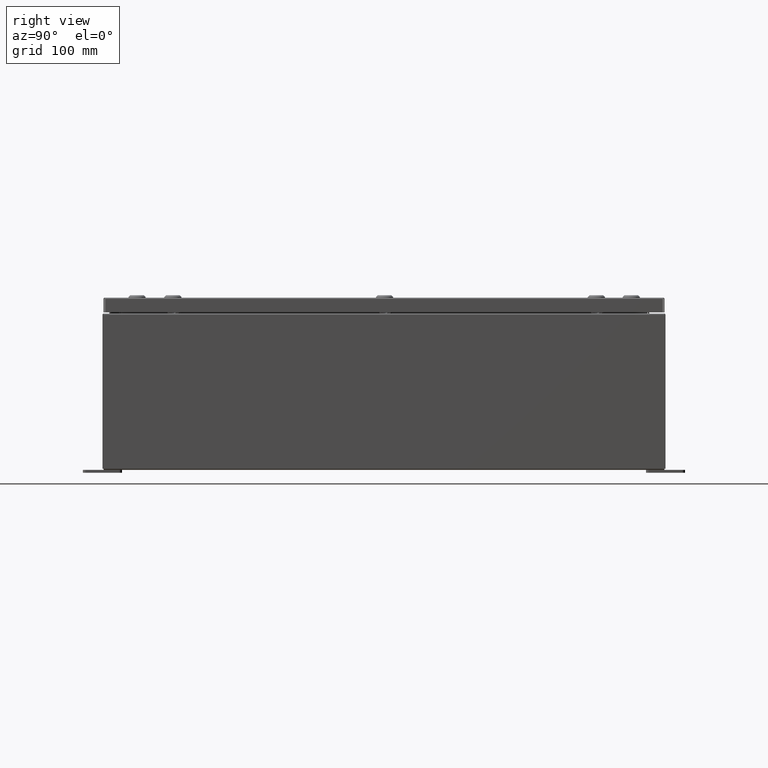
[diagram: clean part render]
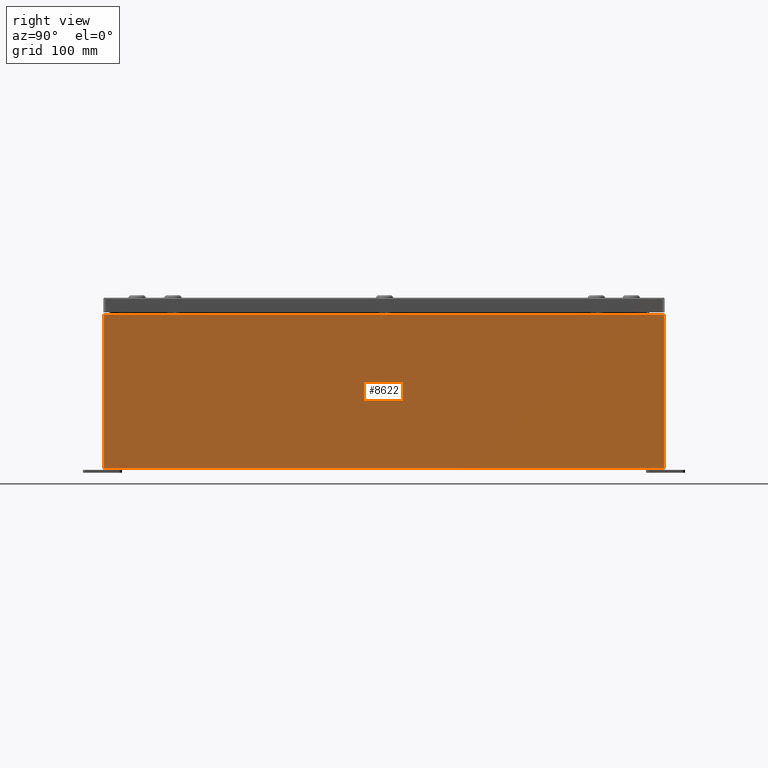
[diagram: same view with one face highlighted and labeled with its STEP entity id]
A machine part, right view. The second image highlights one B-rep face of the part: STEP entity #8622.
In plain terms, the highlighted planar face has unit normal (-1, 0, 0).
Its self-contained STEP definition (entity closure, byte-faithful):
#3407 = VERTEX_POINT ( 'NONE', #7361 ) ;
#5486 = VECTOR ( 'NONE', #62251, 39.37007874015748100 ) ;
#6189 = VERTEX_POINT ( 'NONE', #40984 ) ;
#6384 = DIRECTION ( 'NONE',  ( -0.0000000000000000000, -1.000000000000000000, -0.0000000000000000000 ) ) ;
#7361 = CARTESIAN_POINT ( 'NONE',  ( 12.00000000000003600, -17.92530000000000000, 9.837600000000000100 ) ) ;
#8622 = ADVANCED_FACE ( 'NONE', ( #9820 ), #47459, .F. ) ;
#9820 = FACE_OUTER_BOUND ( 'NONE', #19009, .T. ) ;
#10168 = DIRECTION ( 'NONE',  ( -3.523082860860888200E-015, -2.201926788038054900E-016, -1.000000000000000000 ) ) ;
#10254 = ORIENTED_EDGE ( 'NONE', *, *, #21296, .T. ) ;
#10952 = VERTEX_POINT ( 'NONE', #45318 ) ;
#11715 = LINE ( 'NONE', #56993, #39651 ) ;
#12601 = CARTESIAN_POINT ( 'NONE',  ( 12.00000000000000200, 0.0000000000000000000, -4.253780798634223500E-014 ) ) ;
#15533 = EDGE_CURVE ( 'NONE', #29293, #3407, #29879, .T. ) ;
#17342 = DIRECTION ( 'NONE',  ( -2.147696684564447600E-031, -1.000000000000000000, -6.096072018129156600E-017 ) ) ;
#19009 = EDGE_LOOP ( 'NONE', ( #60278, #59121, #50989, #10254 ) ) ;
#21296 = EDGE_CURVE ( 'NONE', #10952, #29293, #33449, .T. ) ;
#22771 = DIRECTION ( 'NONE',  ( 3.523082860860887800E-015, 0.0000000000000000000, 1.000000000000000000 ) ) ;
#25011 = CARTESIAN_POINT ( 'NONE',  ( 12.00000000000003700, 17.92529999999999600, 9.837599999999993000 ) ) ;
#29293 = VERTEX_POINT ( 'NONE', #25011 ) ;
#29879 = LINE ( 'NONE', #41083, #56252 ) ;
#33449 = LINE ( 'NONE', #62027, #5486 ) ;
#39651 = VECTOR ( 'NONE', #17342, 39.37007874015748100 ) ;
#40984 = CARTESIAN_POINT ( 'NONE',  ( 12.00000000000000200, -17.92530000000000400, 0.01299999999999946500 ) ) ;
#41083 = CARTESIAN_POINT ( 'NONE',  ( 12.00000000000003700, 17.92529999999999600, 9.837599999999993000 ) ) ;
#45318 = CARTESIAN_POINT ( 'NONE',  ( 12.00000000000000200, 17.92529999999999600, 0.01300000000000203200 ) ) ;
#45357 = VECTOR ( 'NONE', #10168, 39.37007874015748100 ) ;
#47459 = PLANE ( 'NONE',  #63592 ) ;
#49870 = EDGE_CURVE ( 'NONE', #10952, #6189, #11715, .T. ) ;
#50989 = ORIENTED_EDGE ( 'NONE', *, *, #49870, .F. ) ;
#52421 = DIRECTION ( 'NONE',  ( -1.000000000000000000, 0.0000000000000000000, 3.523082860860887800E-015 ) ) ;
#55489 = EDGE_CURVE ( 'NONE', #3407, #6189, #58575, .T. ) ;
#56252 = VECTOR ( 'NONE', #6384, 39.37007874015748100 ) ;
#56993 = CARTESIAN_POINT ( 'NONE',  ( 12.00000000000000200, -17.92530000000000000, 0.01299999999999984700 ) ) ;
#58575 = LINE ( 'NONE', #59195, #45357 ) ;
#59121 = ORIENTED_EDGE ( 'NONE', *, *, #55489, .T. ) ;
#59195 = CARTESIAN_POINT ( 'NONE',  ( 12.00000000000000200, -17.92530000000000400, -3.859078816098037700E-014 ) ) ;
#60278 = ORIENTED_EDGE ( 'NONE', *, *, #15533, .T. ) ;
#62027 = CARTESIAN_POINT ( 'NONE',  ( 12.00000000000000200, 17.92529999999999600, -3.859078816098037700E-014 ) ) ;
#62251 = DIRECTION ( 'NONE',  ( 3.523082860860888200E-015, -2.201926788038055100E-016, 1.000000000000000000 ) ) ;
#63592 = AXIS2_PLACEMENT_3D ( 'NONE', #12601, #52421, #22771 ) ;